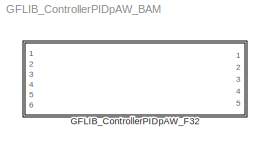
MODEL GFLIB_ControllerPIDpAW_BAM
KIND model
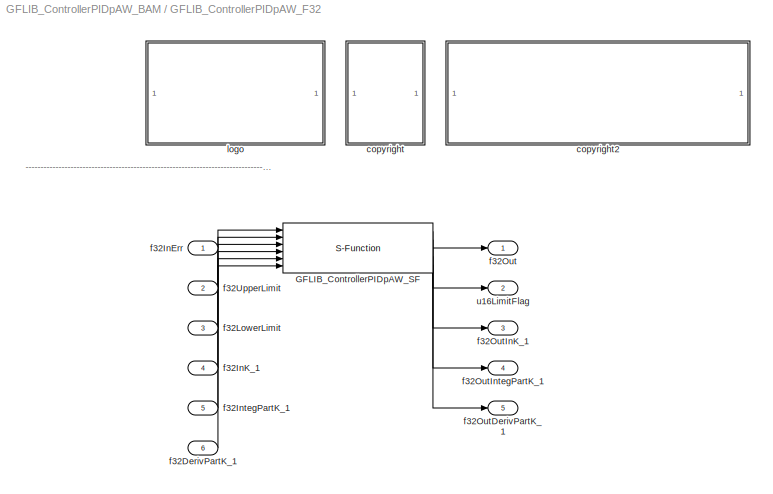
BLOCK [SubSystem] GFLIB_ControllerPIDpAW_F32
  Ports = [6, 5]
  RequestExecContextInheritance = off
  SID = 1
BLOCK [S-Function] GFLIB_ControllerPIDpAW_F32/GFLIB_ControllerPIDpAW_SF
  EnableBusSupport = off
  FunctionName = GFLIB_ControllerPIDpAW_SF_F32
  Parameters = f32PropGain,s16PropGainShift,f32IntegGain,s16IntegGainShift,f32DerivGain,s16DerivGainShift,f32FiltCoef
  Ports = [6, 5]
  SID = 4
BLOCK [SubSystem] GFLIB_ControllerPIDpAW_F32/<copyright redacted>
  Ports = []
  RequestExecContextInheritance = off
  SID = 20
BLOCK [SubSystem] GFLIB_ControllerPIDpAW_F32/copyright2
  Ports = []
  RequestExecContextInheritance = off
  SID = 23
BLOCK [Inport] GFLIB_ControllerPIDpAW_F32/f32DerivPartK_1
  IconDisplay = Port number
  Port = 6
  SID = 10
BLOCK [Inport] GFLIB_ControllerPIDpAW_F32/f32InErr
  IconDisplay = Port number
  SID = 5
BLOCK [Inport] GFLIB_ControllerPIDpAW_F32/f32InK_1
  IconDisplay = Port number
  Port = 4
  SID = 8
BLOCK [Inport] GFLIB_ControllerPIDpAW_F32/f32IntegPartK_1
  IconDisplay = Port number
  Port = 5
  SID = 9
BLOCK [Inport] GFLIB_ControllerPIDpAW_F32/f32LowerLimit
  IconDisplay = Port number
  Port = 3
  SID = 7
BLOCK [Outport] GFLIB_ControllerPIDpAW_F32/f32Out
  IconDisplay = Port number
  SID = 11
BLOCK [Outport] GFLIB_ControllerPIDpAW_F32/f32OutDerivPartK_1
  IconDisplay = Port number
  Port = 5
  SID = 15
BLOCK [Outport] GFLIB_ControllerPIDpAW_F32/f32OutInK_1
  IconDisplay = Port number
  Port = 3
  SID = 13
BLOCK [Outport] GFLIB_ControllerPIDpAW_F32/f32OutIntegPartK_1
  IconDisplay = Port number
  Port = 4
  SID = 14
BLOCK [Inport] GFLIB_ControllerPIDpAW_F32/f32UpperLimit
  IconDisplay = Port number
  Port = 2
  SID = 6
BLOCK [SubSystem] GFLIB_ControllerPIDpAW_F32/logo
  Ports = []
  RequestExecContextInheritance = off
  SID = 16
BLOCK [Outport] GFLIB_ControllerPIDpAW_F32/u16LimitFlag
  IconDisplay = Port number
  Port = 2
  SID = 12
ANNOTATION GFLIB_ControllerPIDpAW_F32: ---------------------------------------------------------------------------------------------------------------------------------------------------------------------------------------------------
LINE GFLIB_ControllerPIDpAW_F32/GFLIB_ControllerPIDpAW_SF:1 -> GFLIB_ControllerPIDpAW_F32/f32Out:1
LINE GFLIB_ControllerPIDpAW_F32/GFLIB_ControllerPIDpAW_SF:2 -> GFLIB_ControllerPIDpAW_F32/u16LimitFlag:1
LINE GFLIB_ControllerPIDpAW_F32/GFLIB_ControllerPIDpAW_SF:3 -> GFLIB_ControllerPIDpAW_F32/f32OutInK_1:1
LINE GFLIB_ControllerPIDpAW_F32/GFLIB_ControllerPIDpAW_SF:4 -> GFLIB_ControllerPIDpAW_F32/f32OutIntegPartK_1:1
LINE GFLIB_ControllerPIDpAW_F32/GFLIB_ControllerPIDpAW_SF:5 -> GFLIB_ControllerPIDpAW_F32/f32OutDerivPartK_1:1
LINE GFLIB_ControllerPIDpAW_F32/f32DerivPartK_1:1 -> GFLIB_ControllerPIDpAW_F32/GFLIB_ControllerPIDpAW_SF:6
LINE GFLIB_ControllerPIDpAW_F32/f32InErr:1 -> GFLIB_ControllerPIDpAW_F32/GFLIB_ControllerPIDpAW_SF:1
LINE GFLIB_ControllerPIDpAW_F32/f32InK_1:1 -> GFLIB_ControllerPIDpAW_F32/GFLIB_ControllerPIDpAW_SF:4
LINE GFLIB_ControllerPIDpAW_F32/f32IntegPartK_1:1 -> GFLIB_ControllerPIDpAW_F32/GFLIB_ControllerPIDpAW_SF:5
LINE GFLIB_ControllerPIDpAW_F32/f32LowerLimit:1 -> GFLIB_ControllerPIDpAW_F32/GFLIB_ControllerPIDpAW_SF:3
LINE GFLIB_ControllerPIDpAW_F32/f32UpperLimit:1 -> GFLIB_ControllerPIDpAW_F32/GFLIB_ControllerPIDpAW_SF:2
